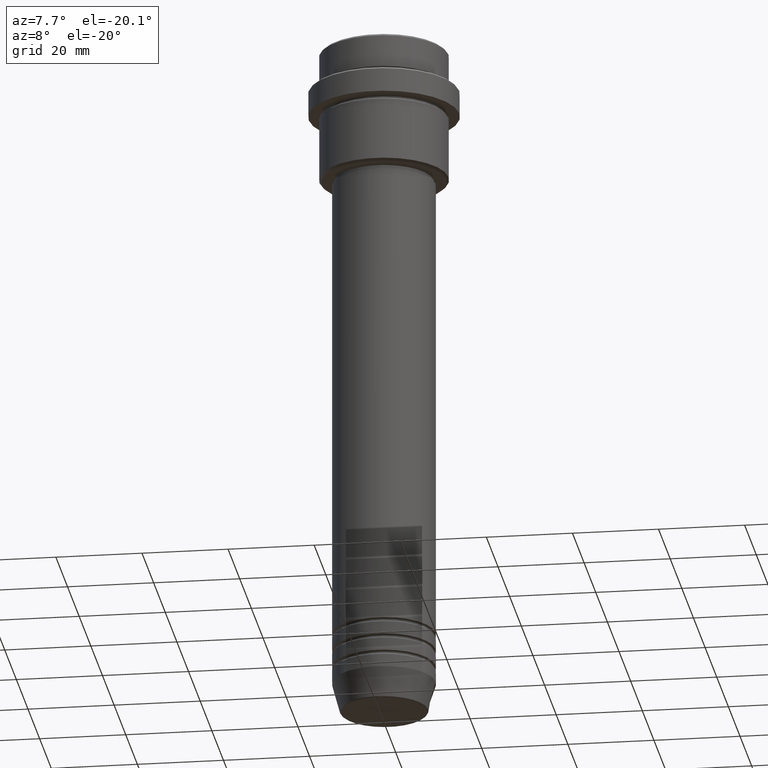
[diagram: clean part render]
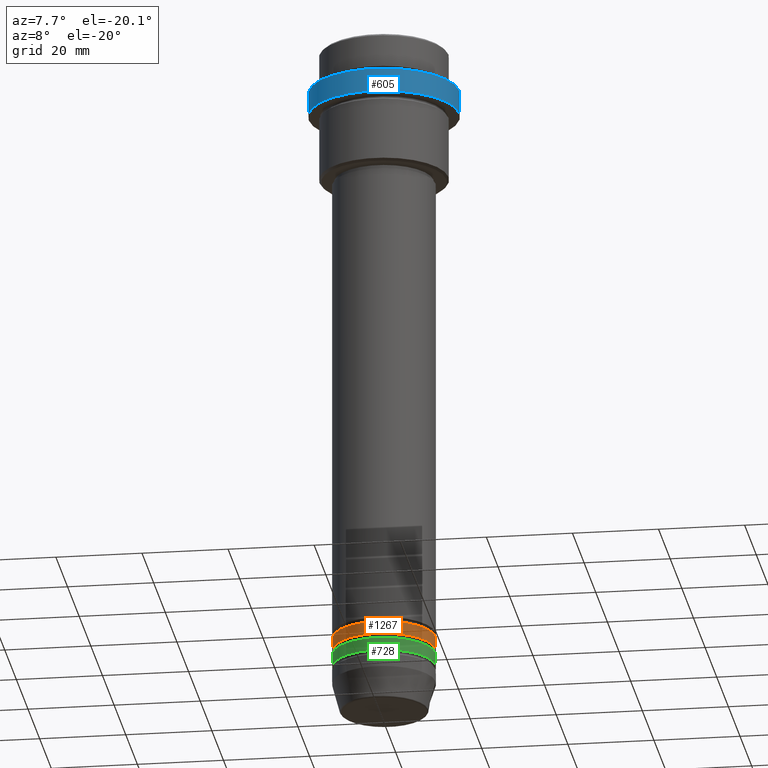
[diagram: same view with three faces highlighted in distinct colors, each labeled with its STEP entity id]
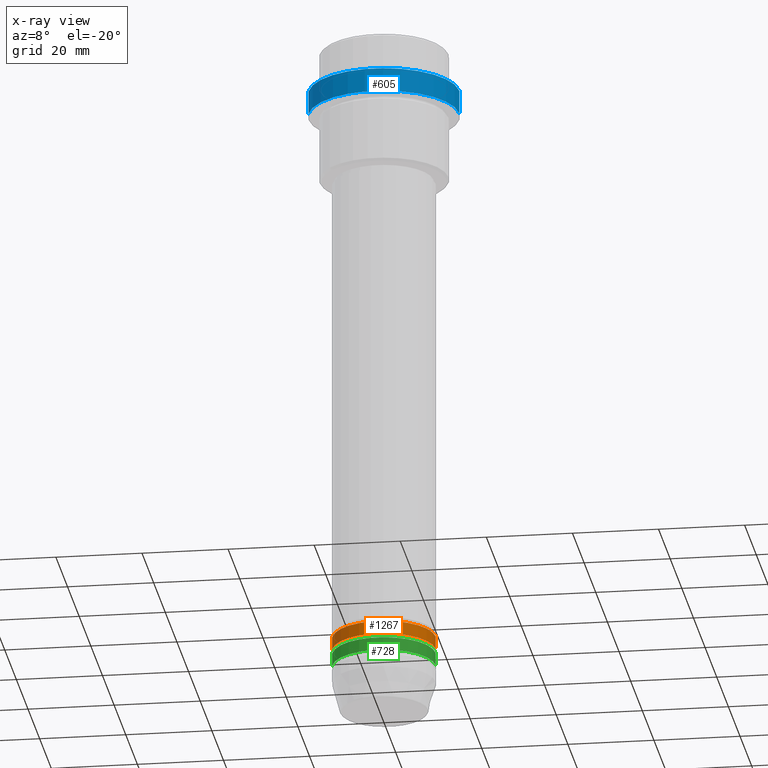
[diagram: x-ray of the same camera — body ghosted, the three highlighted faces saturated]
A machine part, auxiliary view with three faces highlighted in distinct colors.
The next image is the same camera in x-ray (body ghosted, the three faces saturated) — at least one of them is partly hidden behind the body in this view.
Their STEP definitions:

[orange] entity #1267 — the highlighted cylindrical surface (partial cylindrical patch) has radius 12 mm, axis along (-0, -0, 1).
#87 = DIRECTION ( 'NONE',  ( 1.000000000000000000, 0.000000000000000000, 0.000000000000000000 ) ) ;
#108 = AXIS2_PLACEMENT_3D ( 'NONE', #1082, #773, #87 ) ;
#161 = CARTESIAN_POINT ( 'NONE',  ( -12.00000000000000000, 1.469576158976823947E-15, -142.9999999999999147 ) ) ;
#180 = LINE ( 'NONE', #834, #246 ) ;
#201 = LINE ( 'NONE', #1073, #1251 ) ;
#211 = CYLINDRICAL_SURFACE ( 'NONE', #1295, 12.00000000000000000 ) ;
#246 = VECTOR ( 'NONE', #1053, 1000.000000000000000 ) ;
#299 = DIRECTION ( 'NONE',  ( 1.000000000000000000, 0.000000000000000000, 0.000000000000000000 ) ) ;
#340 = AXIS2_PLACEMENT_3D ( 'NONE', #852, #877, #871 ) ;
#393 = EDGE_LOOP ( 'NONE', ( #1177, #1289, #1152, #1014 ) ) ;
#451 = CARTESIAN_POINT ( 'NONE',  ( 12.00000000000000000, 0.000000000000000000, -142.9999999999999147 ) ) ;
#641 = CIRCLE ( 'NONE', #108, 12.00000000000000000 ) ;
#654 = CARTESIAN_POINT ( 'NONE',  ( 0.000000000000000000, 0.000000000000000000, 0.000000000000000000 ) ) ;
#699 = VERTEX_POINT ( 'NONE', #161 ) ;
#718 = CARTESIAN_POINT ( 'NONE',  ( -12.00000000000000000, 1.469576158976823947E-15, -145.9999999999999147 ) ) ;
#773 = DIRECTION ( 'NONE',  ( -0.000000000000000000, -0.000000000000000000, 1.000000000000000000 ) ) ;
#834 = CARTESIAN_POINT ( 'NONE',  ( -12.00000000000000000, 1.469576158976823947E-15, 0.000000000000000000 ) ) ;
#852 = CARTESIAN_POINT ( 'NONE',  ( 0.000000000000000000, 0.000000000000000000, -145.9999999999999147 ) ) ;
#871 = DIRECTION ( 'NONE',  ( 1.000000000000000000, 0.000000000000000000, 0.000000000000000000 ) ) ;
#877 = DIRECTION ( 'NONE',  ( -0.000000000000000000, -0.000000000000000000, 1.000000000000000000 ) ) ;
#892 = VERTEX_POINT ( 'NONE', #1401 ) ;
#932 = EDGE_CURVE ( 'NONE', #892, #982, #201, .T. ) ;
#963 = FACE_OUTER_BOUND ( 'NONE', #393, .T. ) ;
#982 = VERTEX_POINT ( 'NONE', #451 ) ;
#1014 = ORIENTED_EDGE ( 'NONE', *, *, #1247, .F. ) ;
#1053 = DIRECTION ( 'NONE',  ( -0.000000000000000000, -0.000000000000000000, 1.000000000000000000 ) ) ;
#1073 = CARTESIAN_POINT ( 'NONE',  ( 12.00000000000000000, 0.000000000000000000, 0.000000000000000000 ) ) ;
#1082 = CARTESIAN_POINT ( 'NONE',  ( 0.000000000000000000, 0.000000000000000000, -142.9999999999999147 ) ) ;
#1127 = VERTEX_POINT ( 'NONE', #718 ) ;
#1152 = ORIENTED_EDGE ( 'NONE', *, *, #932, .T. ) ;
#1163 = EDGE_CURVE ( 'NONE', #1127, #699, #180, .T. ) ;
#1177 = ORIENTED_EDGE ( 'NONE', *, *, #1163, .F. ) ;
#1189 = DIRECTION ( 'NONE',  ( -0.000000000000000000, -0.000000000000000000, 1.000000000000000000 ) ) ;
#1192 = DIRECTION ( 'NONE',  ( -0.000000000000000000, -0.000000000000000000, 1.000000000000000000 ) ) ;
#1234 = CIRCLE ( 'NONE', #340, 12.00000000000000000 ) ;
#1247 = EDGE_CURVE ( 'NONE', #699, #982, #641, .T. ) ;
#1251 = VECTOR ( 'NONE', #1189, 1000.000000000000000 ) ;
#1267 = ADVANCED_FACE ( 'NONE', ( #963 ), #211, .T. ) ;
#1289 = ORIENTED_EDGE ( 'NONE', *, *, #1298, .T. ) ;
#1295 = AXIS2_PLACEMENT_3D ( 'NONE', #654, #1192, #299 ) ;
#1298 = EDGE_CURVE ( 'NONE', #1127, #892, #1234, .T. ) ;
#1401 = CARTESIAN_POINT ( 'NONE',  ( 12.00000000000000000, 0.000000000000000000, -145.9999999999999147 ) ) ;

[blue] entity #605 — the highlighted cylindrical surface (partial cylindrical patch) has radius 17.5 mm, axis along (-0, -0, 1).
#164 = ORIENTED_EDGE ( 'NONE', *, *, #1026, .T. ) ;
#176 = CARTESIAN_POINT ( 'NONE',  ( -17.50000000000000000, 2.143131898507868248E-15, -9.500000000000014211 ) ) ;
#206 = CARTESIAN_POINT ( 'NONE',  ( 17.50000000000000000, 0.000000000000000000, 0.000000000000000000 ) ) ;
#214 = AXIS2_PLACEMENT_3D ( 'NONE', #1260, #1246, #1344 ) ;
#223 = LINE ( 'NONE', #206, #683 ) ;
#241 = CIRCLE ( 'NONE', #1314, 17.50000000000000000 ) ;
#327 = DIRECTION ( 'NONE',  ( -0.000000000000000000, -0.000000000000000000, 1.000000000000000000 ) ) ;
#368 = CARTESIAN_POINT ( 'NONE',  ( 0.000000000000000000, 0.000000000000000000, -15.00000000000000000 ) ) ;
#382 = ORIENTED_EDGE ( 'NONE', *, *, #663, .T. ) ;
#383 = AXIS2_PLACEMENT_3D ( 'NONE', #881, #327, #1320 ) ;
#387 = VERTEX_POINT ( 'NONE', #1191 ) ;
#390 = CARTESIAN_POINT ( 'NONE',  ( -17.50000000000000000, 2.143131898507868248E-15, 0.000000000000000000 ) ) ;
#468 = VERTEX_POINT ( 'NONE', #961 ) ;
#605 = ADVANCED_FACE ( 'NONE', ( #1095 ), #890, .T. ) ;
#663 = EDGE_CURVE ( 'NONE', #823, #896, #840, .T. ) ;
#683 = VECTOR ( 'NONE', #1211, 1000.000000000000000 ) ;
#714 = DIRECTION ( 'NONE',  ( -0.000000000000000000, -0.000000000000000000, 1.000000000000000000 ) ) ;
#725 = EDGE_CURVE ( 'NONE', #468, #387, #241, .T. ) ;
#752 = VECTOR ( 'NONE', #1148, 1000.000000000000000 ) ;
#760 = EDGE_CURVE ( 'NONE', #468, #896, #1365, .T. ) ;
#811 = ORIENTED_EDGE ( 'NONE', *, *, #760, .F. ) ;
#823 = VERTEX_POINT ( 'NONE', #1269 ) ;
#840 = CIRCLE ( 'NONE', #214, 17.50000000000000000 ) ;
#881 = CARTESIAN_POINT ( 'NONE',  ( 0.000000000000000000, 0.000000000000000000, 0.000000000000000000 ) ) ;
#890 = CYLINDRICAL_SURFACE ( 'NONE', #383, 17.50000000000000000 ) ;
#896 = VERTEX_POINT ( 'NONE', #176 ) ;
#961 = CARTESIAN_POINT ( 'NONE',  ( -17.50000000000000000, 2.143131898507868248E-15, -15.00000000000000000 ) ) ;
#1026 = EDGE_CURVE ( 'NONE', #387, #823, #223, .T. ) ;
#1057 = ORIENTED_EDGE ( 'NONE', *, *, #725, .T. ) ;
#1095 = FACE_OUTER_BOUND ( 'NONE', #1103, .T. ) ;
#1103 = EDGE_LOOP ( 'NONE', ( #811, #1057, #164, #382 ) ) ;
#1148 = DIRECTION ( 'NONE',  ( -0.000000000000000000, -0.000000000000000000, 1.000000000000000000 ) ) ;
#1191 = CARTESIAN_POINT ( 'NONE',  ( 17.50000000000000000, 0.000000000000000000, -15.00000000000000000 ) ) ;
#1211 = DIRECTION ( 'NONE',  ( -0.000000000000000000, -0.000000000000000000, 1.000000000000000000 ) ) ;
#1246 = DIRECTION ( 'NONE',  ( 0.000000000000000000, 0.000000000000000000, -1.000000000000000000 ) ) ;
#1260 = CARTESIAN_POINT ( 'NONE',  ( 0.000000000000000000, 0.000000000000000000, -9.500000000000014211 ) ) ;
#1269 = CARTESIAN_POINT ( 'NONE',  ( 17.50000000000000000, 0.000000000000000000, -9.500000000000014211 ) ) ;
#1314 = AXIS2_PLACEMENT_3D ( 'NONE', #368, #714, #1351 ) ;
#1320 = DIRECTION ( 'NONE',  ( 1.000000000000000000, 0.000000000000000000, 0.000000000000000000 ) ) ;
#1344 = DIRECTION ( 'NONE',  ( 1.000000000000000000, 0.000000000000000000, 0.000000000000000000 ) ) ;
#1351 = DIRECTION ( 'NONE',  ( 1.000000000000000000, 0.000000000000000000, 0.000000000000000000 ) ) ;
#1365 = LINE ( 'NONE', #390, #752 ) ;

[green] entity #728 — the highlighted cylindrical surface (partial cylindrical patch) has radius 12 mm, axis along (-0, -0, 1).
#63 = VECTOR ( 'NONE', #168, 1000.000000000000000 ) ;
#66 = EDGE_CURVE ( 'NONE', #719, #700, #466, .T. ) ;
#90 = EDGE_CURVE ( 'NONE', #700, #302, #365, .T. ) ;
#146 = ORIENTED_EDGE ( 'NONE', *, *, #90, .F. ) ;
#165 = VERTEX_POINT ( 'NONE', #1118 ) ;
#168 = DIRECTION ( 'NONE',  ( -0.000000000000000000, -0.000000000000000000, 1.000000000000000000 ) ) ;
#169 = CARTESIAN_POINT ( 'NONE',  ( -12.00000000000000000, 1.469576158976823947E-15, -146.9999999999999147 ) ) ;
#188 = DIRECTION ( 'NONE',  ( -0.000000000000000000, -0.000000000000000000, 1.000000000000000000 ) ) ;
#243 = EDGE_CURVE ( 'NONE', #719, #165, #569, .T. ) ;
#245 = DIRECTION ( 'NONE',  ( -0.000000000000000000, -0.000000000000000000, 1.000000000000000000 ) ) ;
#277 = DIRECTION ( 'NONE',  ( -0.000000000000000000, -0.000000000000000000, 1.000000000000000000 ) ) ;
#284 = EDGE_CURVE ( 'NONE', #165, #302, #720, .T. ) ;
#302 = VERTEX_POINT ( 'NONE', #423 ) ;
#350 = DIRECTION ( 'NONE',  ( -0.000000000000000000, -0.000000000000000000, 1.000000000000000000 ) ) ;
#351 = ORIENTED_EDGE ( 'NONE', *, *, #284, .T. ) ;
#357 = DIRECTION ( 'NONE',  ( 1.000000000000000000, 0.000000000000000000, 0.000000000000000000 ) ) ;
#365 = CIRCLE ( 'NONE', #504, 12.00000000000000000 ) ;
#415 = ORIENTED_EDGE ( 'NONE', *, *, #243, .T. ) ;
#423 = CARTESIAN_POINT ( 'NONE',  ( 12.00000000000000000, 0.000000000000000000, -146.9999999999999147 ) ) ;
#466 = LINE ( 'NONE', #796, #575 ) ;
#485 = ORIENTED_EDGE ( 'NONE', *, *, #66, .F. ) ;
#504 = AXIS2_PLACEMENT_3D ( 'NONE', #991, #350, #1117 ) ;
#569 = CIRCLE ( 'NONE', #928, 12.00000000000000000 ) ;
#575 = VECTOR ( 'NONE', #245, 1000.000000000000000 ) ;
#624 = EDGE_LOOP ( 'NONE', ( #485, #415, #351, #146 ) ) ;
#659 = AXIS2_PLACEMENT_3D ( 'NONE', #1140, #277, #357 ) ;
#700 = VERTEX_POINT ( 'NONE', #169 ) ;
#719 = VERTEX_POINT ( 'NONE', #909 ) ;
#720 = LINE ( 'NONE', #1364, #63 ) ;
#728 = ADVANCED_FACE ( 'NONE', ( #808 ), #1354, .T. ) ;
#796 = CARTESIAN_POINT ( 'NONE',  ( -12.00000000000000000, 1.469576158976823947E-15, 0.000000000000000000 ) ) ;
#808 = FACE_OUTER_BOUND ( 'NONE', #624, .T. ) ;
#909 = CARTESIAN_POINT ( 'NONE',  ( -12.00000000000000000, 1.469576158976823947E-15, -149.9999999999999147 ) ) ;
#928 = AXIS2_PLACEMENT_3D ( 'NONE', #1028, #188, #1266 ) ;
#991 = CARTESIAN_POINT ( 'NONE',  ( 0.000000000000000000, 0.000000000000000000, -146.9999999999999147 ) ) ;
#1028 = CARTESIAN_POINT ( 'NONE',  ( 0.000000000000000000, 0.000000000000000000, -149.9999999999999147 ) ) ;
#1117 = DIRECTION ( 'NONE',  ( 1.000000000000000000, 0.000000000000000000, 0.000000000000000000 ) ) ;
#1118 = CARTESIAN_POINT ( 'NONE',  ( 12.00000000000000000, 0.000000000000000000, -149.9999999999999147 ) ) ;
#1140 = CARTESIAN_POINT ( 'NONE',  ( 0.000000000000000000, 0.000000000000000000, 0.000000000000000000 ) ) ;
#1266 = DIRECTION ( 'NONE',  ( 1.000000000000000000, 0.000000000000000000, 0.000000000000000000 ) ) ;
#1354 = CYLINDRICAL_SURFACE ( 'NONE', #659, 12.00000000000000000 ) ;
#1364 = CARTESIAN_POINT ( 'NONE',  ( 12.00000000000000000, 0.000000000000000000, 0.000000000000000000 ) ) ;